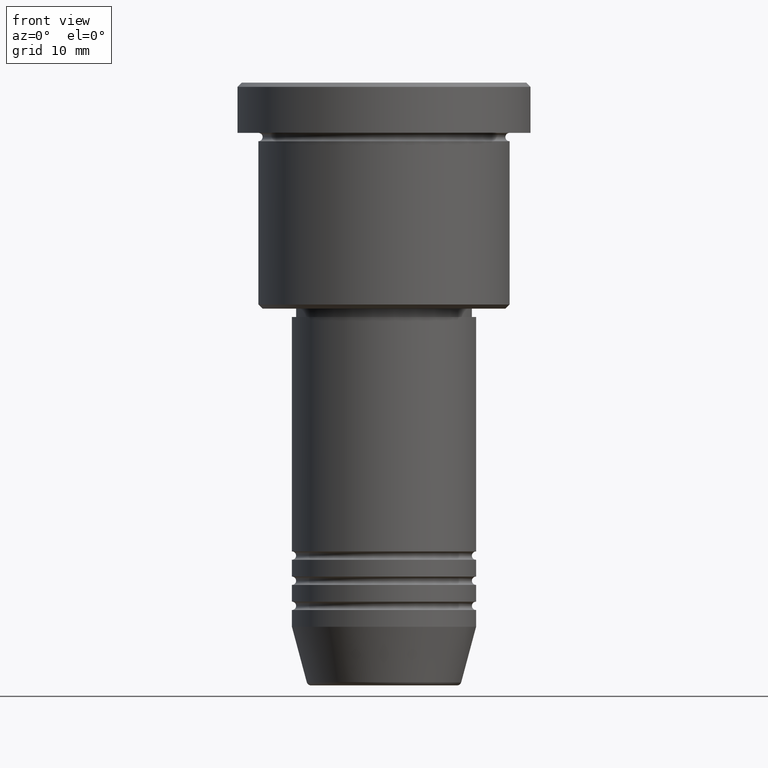
[diagram: clean part render]
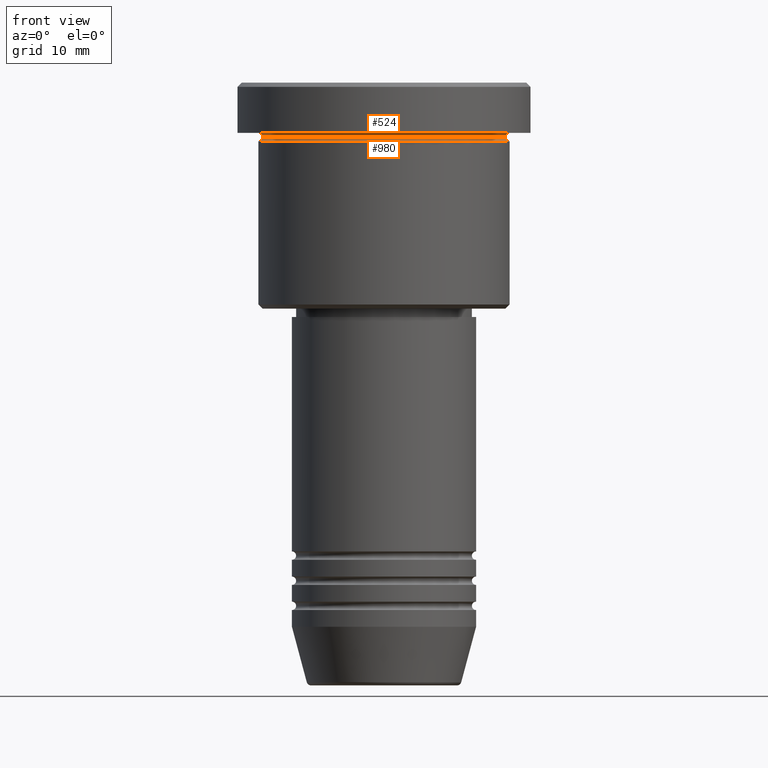
[diagram: same view with one multi-face feature highlighted, each face labeled with its STEP entity id]
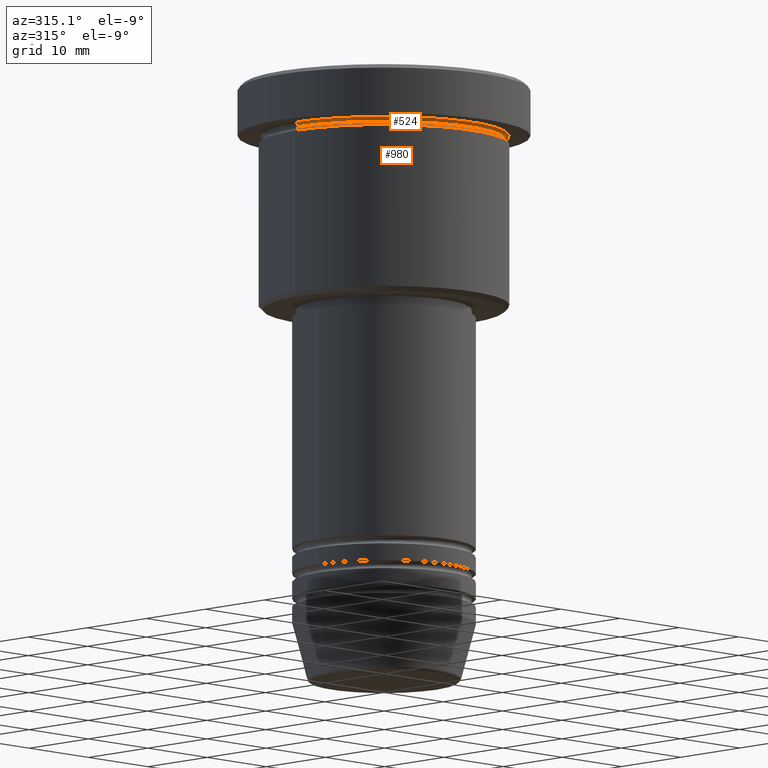
[diagram: same view with one multi-face feature highlighted, each face labeled with its STEP entity id]
A machine part, front view. The highlighted faces form ONE feature: a constant-radius fillet chain: 2 tangent blend faces with common blend radius 0.5 mm. The faces share edges in the B-rep.
A second angle (auxiliary view) of the same feature is appended — it is thin or edge-on in the first view.
Their STEP definitions:
[1] entity #980 (Torus):
#20 = EDGE_CURVE ( 'NONE', #930, #880, #853, .T. ) ;
#70 = EDGE_LOOP ( 'NONE', ( #239, #245, #599, #131 ) ) ;
#71 = DIRECTION ( 'NONE',  ( 1.224646799147353207E-16, 1.000000000000000000, 0.000000000000000000 ) ) ;
#86 = DIRECTION ( 'NONE',  ( -1.000000000000000000, 1.224646799147349509E-16, 0.000000000000000000 ) ) ;
#131 = ORIENTED_EDGE ( 'NONE', *, *, #834, .F. ) ;
#239 = ORIENTED_EDGE ( 'NONE', *, *, #20, .F. ) ;
#245 = ORIENTED_EDGE ( 'NONE', *, *, #810, .T. ) ;
#282 = FACE_OUTER_BOUND ( 'NONE', #70, .T. ) ;
#310 = CARTESIAN_POINT ( 'NONE',  ( 0.000000000000000000, 0.000000000000000000, -6.999999999999995559 ) ) ;
#358 = CARTESIAN_POINT ( 'NONE',  ( 14.49999999999999822, 0.000000000000000000, -6.499999999999995559 ) ) ;
#402 = AXIS2_PLACEMENT_3D ( 'NONE', #521, #882, #1171 ) ;
#445 = CARTESIAN_POINT ( 'NONE',  ( 15.00000000000000000, 0.000000000000000000, -6.499999999999995559 ) ) ;
#503 = TOROIDAL_SURFACE ( 'NONE', #987, 15.00000000000000000, 0.5000000000000000000 ) ;
#505 = CARTESIAN_POINT ( 'NONE',  ( -15.00000000000000000, 1.836970198721029589E-15, -6.999999999999995559 ) ) ;
#521 = CARTESIAN_POINT ( 'NONE',  ( 0.000000000000000000, 0.000000000000000000, -6.499999999999995559 ) ) ;
#539 = AXIS2_PLACEMENT_3D ( 'NONE', #1070, #71, #86 ) ;
#543 = DIRECTION ( 'NONE',  ( 0.000000000000000000, -1.000000000000000000, 0.000000000000000000 ) ) ;
#571 = AXIS2_PLACEMENT_3D ( 'NONE', #310, #675, #1101 ) ;
#599 = ORIENTED_EDGE ( 'NONE', *, *, #625, .T. ) ;
#625 = EDGE_CURVE ( 'NONE', #938, #1046, #1086, .T. ) ;
#637 = DIRECTION ( 'NONE',  ( 0.000000000000000000, 0.000000000000000000, -1.000000000000000000 ) ) ;
#654 = CARTESIAN_POINT ( 'NONE',  ( 0.000000000000000000, 0.000000000000000000, -6.499999999999995559 ) ) ;
#675 = DIRECTION ( 'NONE',  ( -0.000000000000000000, -0.000000000000000000, 1.000000000000000000 ) ) ;
#716 = CARTESIAN_POINT ( 'NONE',  ( -14.49999999999999822, 1.806354028742345802E-15, -6.499999999999995559 ) ) ;
#773 = CARTESIAN_POINT ( 'NONE',  ( 15.00000000000000000, 0.000000000000000000, -6.999999999999995559 ) ) ;
#786 = CIRCLE ( 'NONE', #539, 0.5000000000000004441 ) ;
#810 = EDGE_CURVE ( 'NONE', #930, #938, #786, .T. ) ;
#829 = DIRECTION ( 'NONE',  ( 1.000000000000000000, 0.000000000000000000, 0.000000000000000000 ) ) ;
#834 = EDGE_CURVE ( 'NONE', #880, #1046, #1105, .T. ) ;
#853 = CIRCLE ( 'NONE', #402, 14.49999999999999822 ) ;
#880 = VERTEX_POINT ( 'NONE', #358 ) ;
#882 = DIRECTION ( 'NONE',  ( -0.000000000000000000, -0.000000000000000000, 1.000000000000000000 ) ) ;
#930 = VERTEX_POINT ( 'NONE', #716 ) ;
#938 = VERTEX_POINT ( 'NONE', #505 ) ;
#980 = ADVANCED_FACE ( 'NONE', ( #282 ), #503, .F. ) ;
#987 = AXIS2_PLACEMENT_3D ( 'NONE', #654, #1002, #829 ) ;
#1002 = DIRECTION ( 'NONE',  ( -0.000000000000000000, -0.000000000000000000, 1.000000000000000000 ) ) ;
#1046 = VERTEX_POINT ( 'NONE', #773 ) ;
#1070 = CARTESIAN_POINT ( 'NONE',  ( -15.00000000000000000, 1.836970198721029589E-15, -6.499999999999995559 ) ) ;
#1071 = AXIS2_PLACEMENT_3D ( 'NONE', #445, #543, #637 ) ;
#1086 = CIRCLE ( 'NONE', #571, 15.00000000000000000 ) ;
#1101 = DIRECTION ( 'NONE',  ( 1.000000000000000000, 0.000000000000000000, 0.000000000000000000 ) ) ;
#1105 = CIRCLE ( 'NONE', #1071, 0.5000000000000004441 ) ;
#1171 = DIRECTION ( 'NONE',  ( 1.000000000000000000, 0.000000000000000000, 0.000000000000000000 ) ) ;
[2] entity #524 (Torus):
#20 = EDGE_CURVE ( 'NONE', #930, #880, #853, .T. ) ;
#43 = ORIENTED_EDGE ( 'NONE', *, *, #888, .T. ) ;
#95 = DIRECTION ( 'NONE',  ( -1.000000000000000000, 0.000000000000000000, 0.000000000000000000 ) ) ;
#120 = ORIENTED_EDGE ( 'NONE', *, *, #568, .F. ) ;
#148 = EDGE_CURVE ( 'NONE', #770, #718, #565, .T. ) ;
#173 = AXIS2_PLACEMENT_3D ( 'NONE', #272, #901, #191 ) ;
#181 = DIRECTION ( 'NONE',  ( -0.000000000000000000, -0.000000000000000000, 1.000000000000000000 ) ) ;
#191 = DIRECTION ( 'NONE',  ( 0.000000000000000000, 0.000000000000000000, -1.000000000000000000 ) ) ;
#254 = CARTESIAN_POINT ( 'NONE',  ( 0.000000000000000000, 0.000000000000000000, -6.499999999999995559 ) ) ;
#272 = CARTESIAN_POINT ( 'NONE',  ( -15.00000000000000000, 0.000000000000000000, -6.499999999999995559 ) ) ;
#288 = CIRCLE ( 'NONE', #173, 0.5000000000000004441 ) ;
#317 = DIRECTION ( 'NONE',  ( 0.000000000000000000, 0.000000000000000000, -1.000000000000000000 ) ) ;
#358 = CARTESIAN_POINT ( 'NONE',  ( 14.49999999999999822, 0.000000000000000000, -6.499999999999995559 ) ) ;
#402 = AXIS2_PLACEMENT_3D ( 'NONE', #521, #882, #1171 ) ;
#414 = CARTESIAN_POINT ( 'NONE',  ( 15.00000000000000000, 1.836970198721029589E-15, -5.999999999999994671 ) ) ;
#499 = AXIS2_PLACEMENT_3D ( 'NONE', #254, #317, #512 ) ;
#512 = DIRECTION ( 'NONE',  ( -1.000000000000000000, 0.000000000000000000, 0.000000000000000000 ) ) ;
#521 = CARTESIAN_POINT ( 'NONE',  ( 0.000000000000000000, 0.000000000000000000, -6.499999999999995559 ) ) ;
#524 = ADVANCED_FACE ( 'NONE', ( #771 ), #1051, .F. ) ;
#548 = AXIS2_PLACEMENT_3D ( 'NONE', #814, #806, #887 ) ;
#565 = CIRCLE ( 'NONE', #664, 15.00000000000000000 ) ;
#568 = EDGE_CURVE ( 'NONE', #930, #770, #288, .T. ) ;
#664 = AXIS2_PLACEMENT_3D ( 'NONE', #809, #181, #95 ) ;
#716 = CARTESIAN_POINT ( 'NONE',  ( -14.49999999999999822, 1.806354028742345802E-15, -6.499999999999995559 ) ) ;
#718 = VERTEX_POINT ( 'NONE', #414 ) ;
#754 = ORIENTED_EDGE ( 'NONE', *, *, #20, .T. ) ;
#770 = VERTEX_POINT ( 'NONE', #1054 ) ;
#771 = FACE_OUTER_BOUND ( 'NONE', #1075, .T. ) ;
#806 = DIRECTION ( 'NONE',  ( -1.224646799147353207E-16, 1.000000000000000000, 0.000000000000000000 ) ) ;
#809 = CARTESIAN_POINT ( 'NONE',  ( 0.000000000000000000, 0.000000000000000000, -5.999999999999995559 ) ) ;
#814 = CARTESIAN_POINT ( 'NONE',  ( 15.00000000000000000, 1.836970198721029589E-15, -6.499999999999995559 ) ) ;
#853 = CIRCLE ( 'NONE', #402, 14.49999999999999822 ) ;
#880 = VERTEX_POINT ( 'NONE', #358 ) ;
#882 = DIRECTION ( 'NONE',  ( -0.000000000000000000, -0.000000000000000000, 1.000000000000000000 ) ) ;
#887 = DIRECTION ( 'NONE',  ( -1.000000000000000000, -1.224646799147349509E-16, 0.000000000000000000 ) ) ;
#888 = EDGE_CURVE ( 'NONE', #880, #718, #1166, .T. ) ;
#901 = DIRECTION ( 'NONE',  ( -0.000000000000000000, -1.000000000000000000, -0.000000000000000000 ) ) ;
#930 = VERTEX_POINT ( 'NONE', #716 ) ;
#1051 = TOROIDAL_SURFACE ( 'NONE', #499, 15.00000000000000000, 0.5000000000000000000 ) ;
#1054 = CARTESIAN_POINT ( 'NONE',  ( -15.00000000000000000, 0.000000000000000000, -5.999999999999994671 ) ) ;
#1056 = ORIENTED_EDGE ( 'NONE', *, *, #148, .F. ) ;
#1075 = EDGE_LOOP ( 'NONE', ( #754, #43, #1056, #120 ) ) ;
#1166 = CIRCLE ( 'NONE', #548, 0.5000000000000004441 ) ;
#1171 = DIRECTION ( 'NONE',  ( 1.000000000000000000, 0.000000000000000000, 0.000000000000000000 ) ) ;